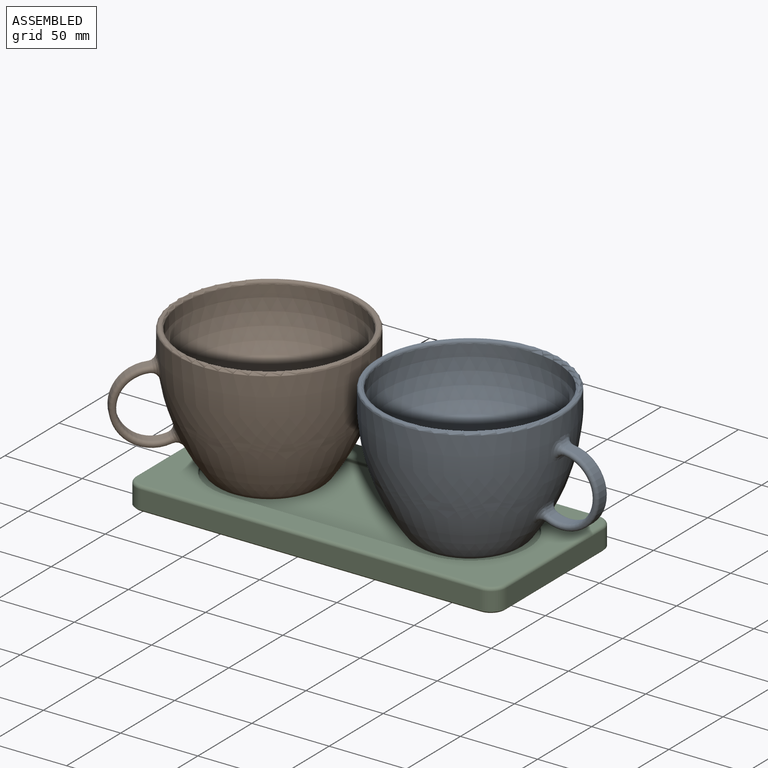
[diagram: assembled view]
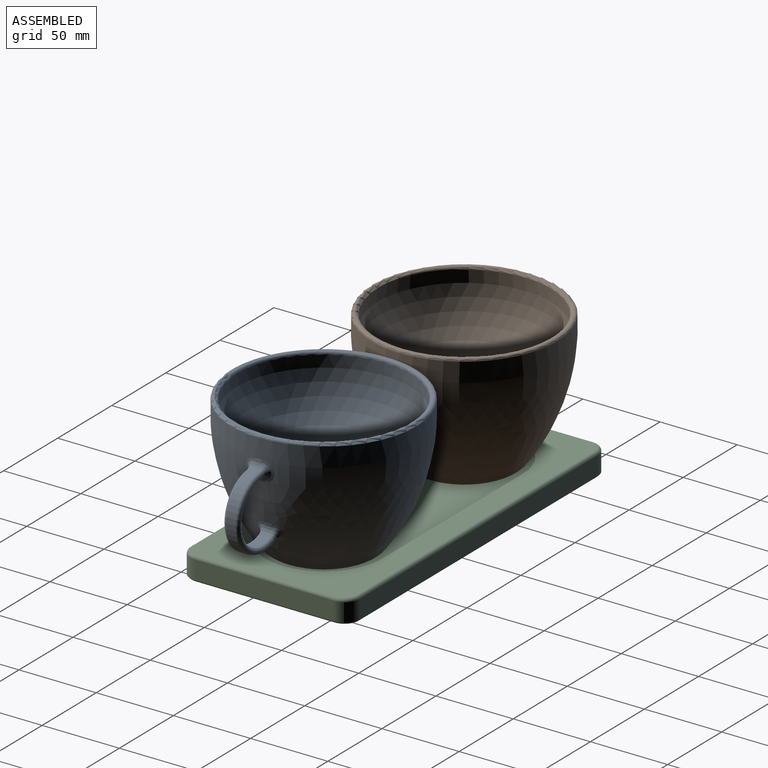
[diagram: assembled view, second angle]
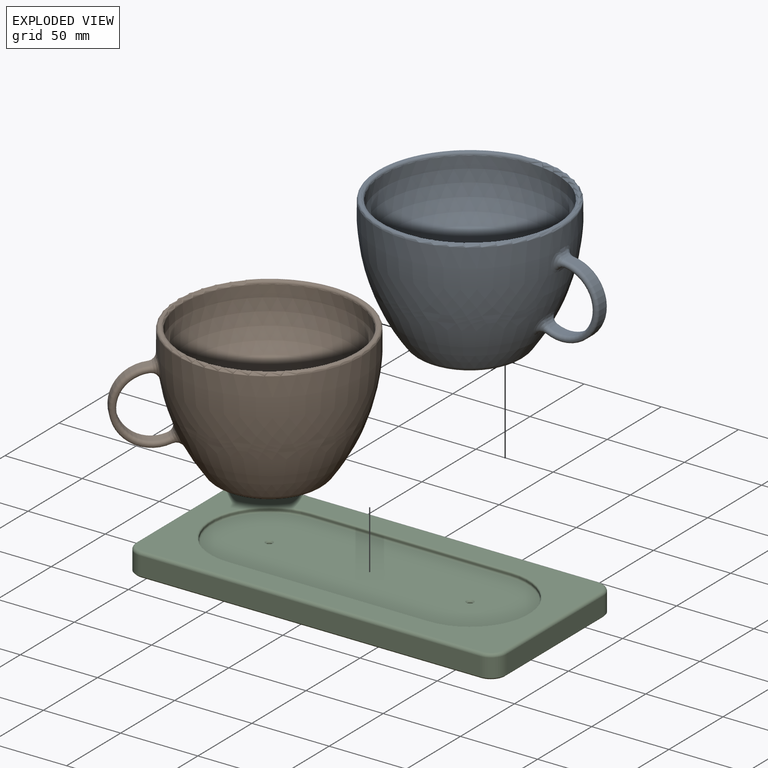
[diagram: exploded view]
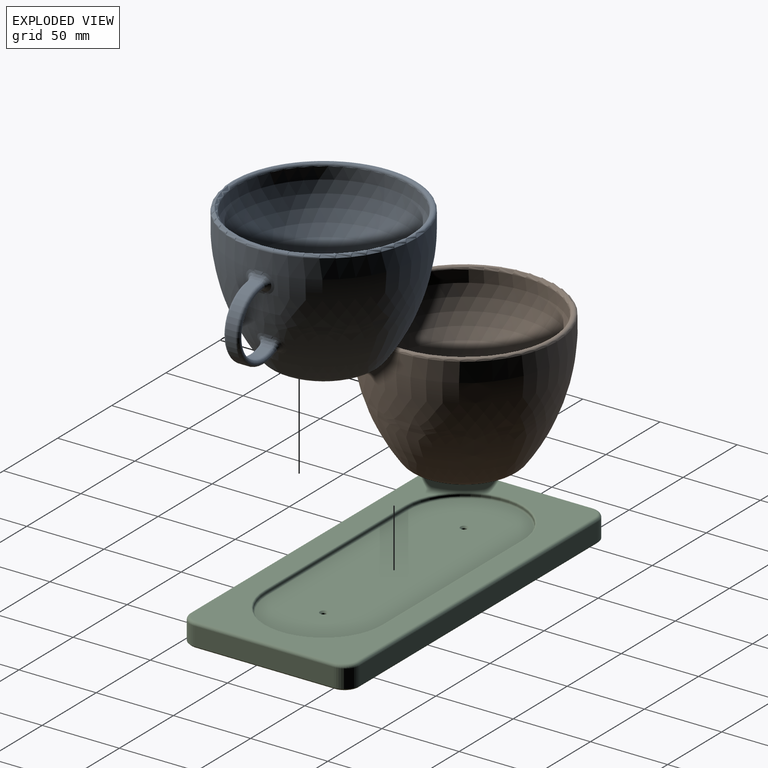
[diagram: exploded view, second angle]
ASSEMBLY  parts=3 mates=4
PART A: 38 faces, bbox 153x130.1x88 mm
  f0: sphere r=56.39mm, area 21630.5mm2, adj f6
  f1: plane 54x54mm, normal (0,0,-1), area 2290.2mm2, adj f2
  f2: torus R=27mm, axis (0,0,1), area 1829mm2, adj f1,f3
  f3: revolved ~120.5x120.5mm, area 57279.4mm2, adj f2,f5,f11,f12,f13,f14,f15,f16
  f4: plane 116.6x116.6mm, normal (0,0,1), area 112.9mm2, adj f5,f6
  f5: torus R=58.3mm, axis (0,0,1), area 1022.4mm2, adj f3,f4
  f6: torus R=57.99mm, axis (0,0,1), area 1062.5mm2, adj f0,f4
  f7: cylinder r=24mm len=47.87mm, axis (0,1,0), area 498.2mm2, adj f9,f10,f11,f18
  f8: cylinder r=20mm len=39.88mm, axis (0,1,0), area 413.6mm2, adj f9,f10,f14,f15
  f9: torus R=22mm, axis (0,-1,0), area 482.3mm2, adj f7,f8,f12,f17
  f10: torus R=22mm, axis (0,-1,0), area 482.3mm2, adj f7,f8,f13,f16
  f11: bspline ~18.23x5.26mm, area 43.2mm2, adj f3,f7,f12,f13
  f12: bspline ~13.41x7.91mm, area 84.8mm2, adj f3,f9,f11,f14
  f13: bspline ~13.41x7.91mm, area 84.8mm2, adj f3,f10,f11,f14
  f14: bspline ~18.23x6.09mm, area 43.7mm2, adj f3,f8,f12,f13
  f15: bspline ~12.18x6.54mm, area 43.6mm2, adj f3,f8,f16,f17
  f16: bspline ~12.25x8.31mm, area 84.2mm2, adj f3,f10,f15,f18
  f17: bspline ~12.25x8.31mm, area 84.2mm2, adj f3,f9,f15,f18
  f18: bspline ~18.33x7.07mm, area 42.8mm2, adj f3,f7,f16,f17
  f19: sphere r=56.89mm, area 22015.8mm2, adj f25
  f20: plane 54x54mm, normal (0,0,-1), area 2290.2mm2, adj f21
  f21: torus R=27mm, axis (0,0,1), area 1725.6mm2, adj f20,f22
  f22: revolved ~118.97x118.97mm, area 56542.9mm2, adj f21,f24,f30,f31,f32,f33,f34,f35
  f23: plane 116.6x116.6mm, normal (0,0,1), area 112.9mm2, adj f24,f25
  f24: torus R=58.3mm, axis (0,0,1), area 734.5mm2, adj f22,f23
  f25: torus R=57.99mm, axis (0,0,1), area 771.7mm2, adj f19,f23
  f26: cylinder r=23.5mm len=46.87mm, axis (0,1,0), area 487.8mm2, adj f28,f29,f30,f37
  f27: cylinder r=20.5mm len=40.88mm, axis (0,1,0), area 424mm2, adj f28,f29,f33,f34
  f28: torus R=22mm, axis (0,-1,0), area 361.8mm2, adj f26,f27,f31,f36
  f29: torus R=22mm, axis (0,-1,0), area 361.8mm2, adj f26,f27,f32,f35
  f30: bspline ~18.23x5.78mm, area 47.3mm2, adj f22,f26,f31,f32
  f31: bspline ~13.35x7.84mm, area 84.9mm2, adj f22,f28,f30,f33
  f32: bspline ~13.35x7.84mm, area 84.9mm2, adj f22,f29,f30,f33
  f33: bspline ~18.23x6.64mm, area 47.8mm2, adj f22,f27,f31,f32
  f34: bspline ~18.3x7.34mm, area 47.6mm2, adj f22,f27,f35,f36
  f35: bspline ~12.2x8.55mm, area 84.2mm2, adj f22,f29,f34,f37
  f36: bspline ~12.2x8.55mm, area 84.2mm2, adj f22,f28,f34,f37
  f37: bspline ~18.33x7.71mm, area 46.9mm2, adj f22,f26,f35,f36
PART B: same geometry as A
PART C: 45 faces, bbox 241.6x15x111.6 mm
  f0: plane 236x106mm, normal (0,-1,0), area 10294.4mm2, adj f15,f16,f17,f18,f23,f24,f25,f26
  f1: plane 90x12mm, normal (1,0,0), area 1080mm2, adj f11,f14,f26,f34
  f2: plane 220x12mm, normal (0,0,1), area 2640mm2, adj f11,f12,f30,f38
  f3: plane 90x12mm, normal (-1,0,0), area 1080mm2, adj f12,f13,f27,f35
  f4: plane 220x12mm, normal (0,0,-1), area 2640mm2, adj f13,f14,f23,f31
  f5: plane 238x108mm, normal (0,1,0), area 25595.2mm2, adj f31,f32,f33,f34,f35,f36,f37,f38
  f6: plane 130x1mm, normal (0,0,-1), area 130mm2, adj f7,f9,f17,f20
  f7: cylinder r=37.5mm len=75mm, axis (0,-1,0), area 117.8mm2, adj f6,f8,f15,f22
  f8: plane 130x1mm, normal (0,0,1), area 130mm2, adj f7,f9,f16,f21
  f9: cylinder r=37.5mm len=75mm, axis (0,-1,0), area 117.8mm2, adj f6,f8,f18,f19
  f10: plane 203x73mm, normal (0,-1,0), area 13636.1mm2, adj f19,f20,f21,f22,f43,f44
  f11: cylinder r=10mm len=12mm, axis (0,-1,0), area 188.5mm2, adj f1,f2,f28,f36
  f12: cylinder r=10mm len=12mm, axis (0,1,0), area 188.5mm2, adj f2,f3,f29,f37
  f13: cylinder r=10mm len=12mm, axis (0,-1,0), area 188.5mm2, adj f3,f4,f25,f33
  f14: cylinder r=10mm len=12mm, axis (0,1,0), area 188.5mm2, adj f1,f4,f24,f32
  f15: torus R=38.5mm, axis (0,-1,0), area 186.8mm2, adj f0,f7,f16,f17
  f16: cylinder r=1mm len=130mm, axis (-1,0,0), area 204.2mm2, adj f0,f8,f15,f18
  f17: cylinder r=1mm len=130mm, axis (1,0,0), area 204.2mm2, adj f0,f6,f15,f18
  f18: torus R=38.5mm, axis (0,-1,0), area 186.8mm2, adj f0,f9,f16,f17
  f19: torus R=36.5mm, axis (0,-1,0), area 183.3mm2, adj f9,f10,f20,f21
  f20: cylinder r=1mm len=130mm, axis (-1,0,0), area 204.2mm2, adj f6,f10,f19,f22
  f21: cylinder r=1mm len=130mm, axis (1,0,0), area 204.2mm2, adj f8,f10,f19,f22
  f22: torus R=36.5mm, axis (0,-1,0), area 183.3mm2, adj f7,f10,f20,f21
  f23: cylinder r=2mm len=220mm, axis (-1,0,0), area 691.2mm2, adj f0,f4,f24,f25
  f24: torus R=8mm, axis (0,-1,0), area 45.8mm2, adj f0,f14,f23,f26
  f25: torus R=8mm, axis (0,-1,0), area 45.8mm2, adj f0,f13,f23,f27
  f26: cylinder r=2mm len=90mm, axis (0,0,-1), area 282.7mm2, adj f0,f1,f24,f28
  f27: cylinder r=2mm len=90mm, axis (0,0,1), area 282.7mm2, adj f0,f3,f25,f29
  f28: torus R=8mm, axis (0,-1,0), area 45.8mm2, adj f0,f11,f26,f30
  f29: torus R=8mm, axis (0,-1,0), area 45.8mm2, adj f0,f12,f27,f30
  f30: cylinder r=2mm len=220mm, axis (1,0,0), area 691.2mm2, adj f0,f2,f28,f29
  f31: plane 220x1mm, normal (0,0.71,-0.71), area 311.1mm2, adj f4,f5,f32,f33
  f32: cone r=9mm half-angle=45deg, axis (0,-1,0), area 21.1mm2, adj f5,f14,f31,f34
  f33: cone r=9mm half-angle=45deg, axis (0,-1,0), area 21.1mm2, adj f5,f13,f31,f35
  f34: plane 90x1mm, normal (0.71,0.71,0), area 127.3mm2, adj f1,f5,f32,f36
  f35: plane 90x1mm, normal (-0.71,0.71,0), area 127.3mm2, adj f3,f5,f33,f37
  f36: cone r=9mm half-angle=45deg, axis (0,-1,0), area 21.1mm2, adj f5,f11,f34,f38
  f37: cone r=9mm half-angle=45deg, axis (0,-1,0), area 21.1mm2, adj f5,f12,f35,f38
  f38: plane 220x1mm, normal (0,0.71,0.71), area 311.1mm2, adj f2,f5,f36,f37
  f39: cylinder r=1.5mm len=10mm, axis (0,-1,0), area 94.2mm2, adj f42,f44
  f40: cylinder r=1.5mm len=10mm, axis (0,-1,0), area 94.2mm2, adj f41,f43
  f41: cone r=1.5mm half-angle=45deg, axis (0,1,0), area 17.8mm2, adj f5,f40
  f42: cone r=1.5mm half-angle=45deg, axis (0,1,0), area 17.8mm2, adj f5,f39
  f43: cone r=1.5mm half-angle=45deg, axis (0,-1,0), area 17.8mm2, adj f10,f40
  f44: cone r=1.5mm half-angle=45deg, axis (0,-1,0), area 17.8mm2, adj f10,f39
PLACE A t=(-22.08,-88.11,22.36)mm
PLACE B rot(axis=(0,0,-1),139.1deg) t=(-152.08,-88.11,22.36)mm
PLACE C rot(axis=(-1,0,0),90deg) t=(-207.08,-143.11,10.36)mm
MATE planar C.f9 <-> A.f2  axis (0,0,1) through (-22.08,-88.11,22.36)mm
MATE planar C.f7 <-> B.f2  axis (0,0,1) through (-152.08,-88.11,22.36)mm
MATE cylindrical C.f7 <-> B.f2  axis (0,0,1) through (-152.08,-88.11,21.36)mm
MATE cylindrical C.f9 <-> A.f2  axis (0,0,1) through (-22.08,-88.11,21.36)mm
